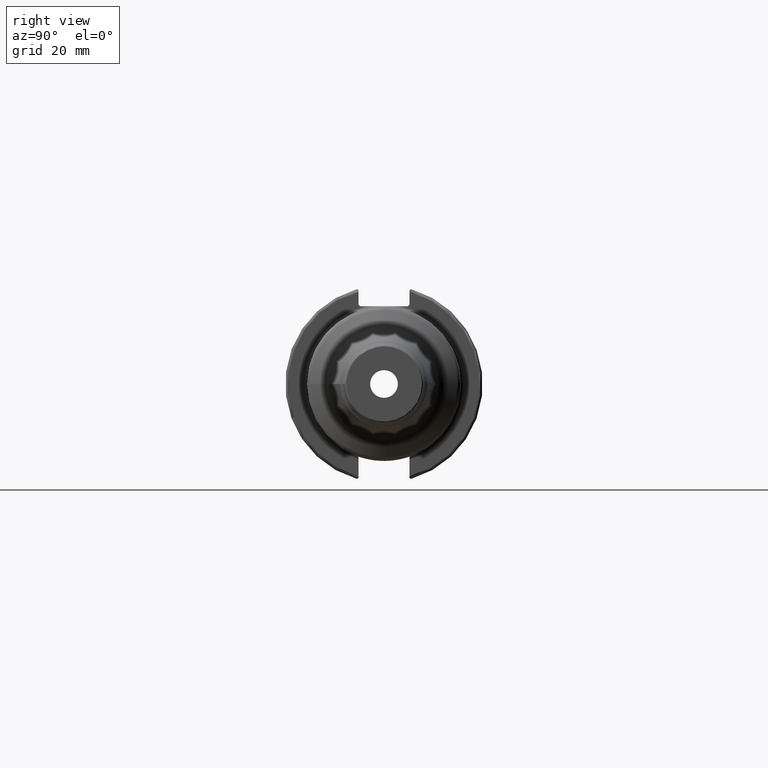
[diagram: clean part render]
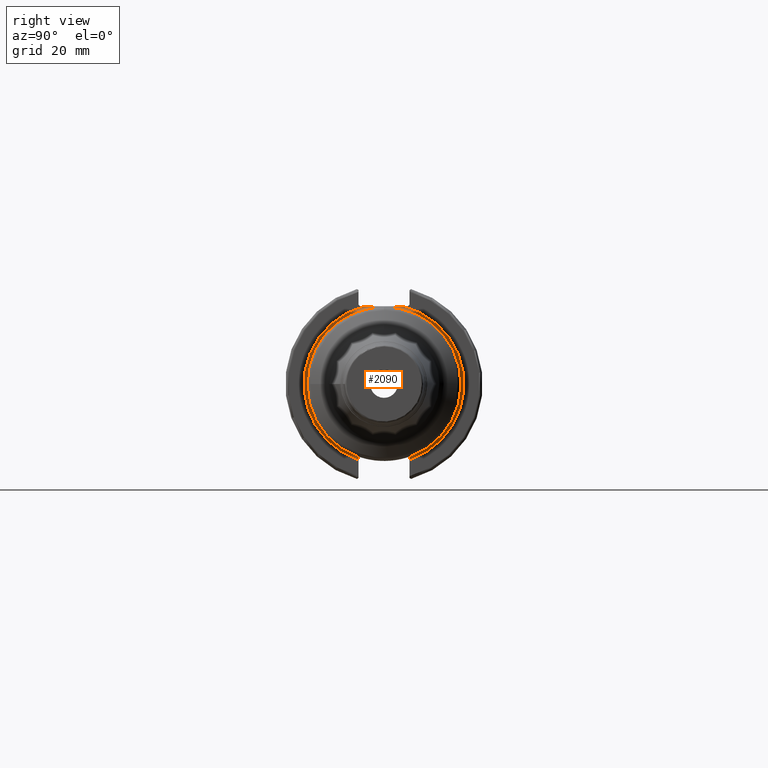
[diagram: same view with one face highlighted and labeled with its STEP entity id]
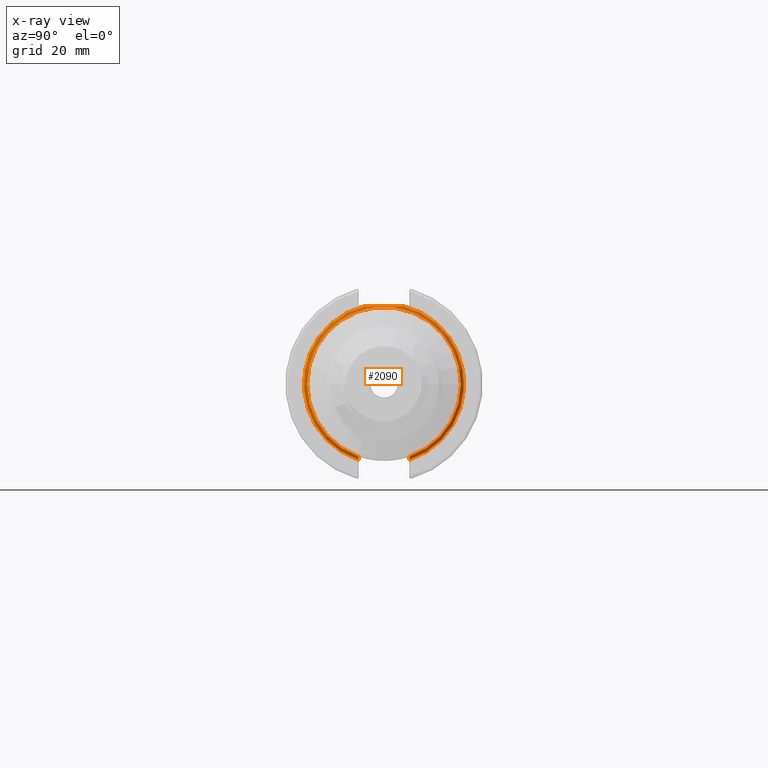
[diagram: x-ray of the same camera — body ghosted, the highlighted face saturated]
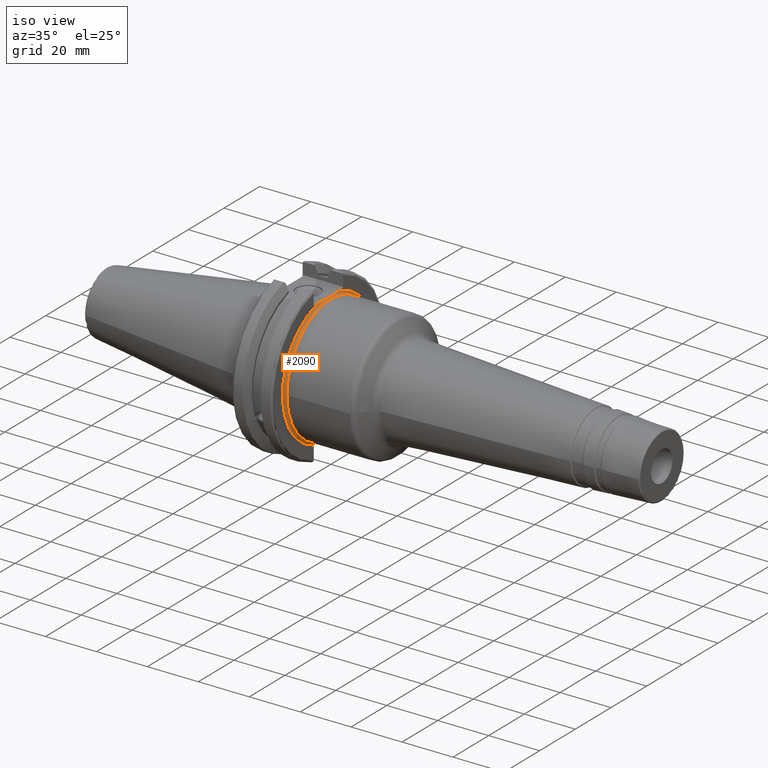
[diagram: same view with one face highlighted and labeled with its STEP entity id]
A machine part, right view. The second image highlights one B-rep face of the part: STEP entity #2090.
The next image is the same camera in x-ray: the body ghosted, the highlighted face saturated — about 3% of this face is hidden behind the body in this view.
A second angle (iso view) of the same face is appended — the face is thin or edge-on in the first view.
In plain terms, the highlighted toroidal blend (fillet) surface has major radius 25.75 mm and minor (blend) radius 1 mm.
Its self-contained STEP definition (entity closure, byte-faithful):
#96=TOROIDAL_SURFACE('',#2304,25.75,1.);
#123=B_SPLINE_CURVE_WITH_KNOTS('',3,(#3489,#3490,#3491,#3492,#3493,#3494,
#3495,#3496,#3497,#3498),.UNSPECIFIED.,.F.,.F.,(4,2,2,2,4),(1.28229186042809,
1.47392183654147,1.862003561099,2.25008528565653,2.44171526176991),
 .UNSPECIFIED.);
#124=B_SPLINE_CURVE_WITH_KNOTS('',3,(#3501,#3502,#3503,#3504,#3505,#3506,
#3507,#3508,#3509,#3510),.UNSPECIFIED.,.F.,.F.,(4,2,2,2,4),(0.152036209068872,
0.19179652975479,0.230554749961229,0.268011696377573,0.304368806480559),
 .UNSPECIFIED.);
#125=B_SPLINE_CURVE_WITH_KNOTS('',3,(#3512,#3513,#3514,#3515,#3516,#3517,
#3518,#3519,#3520,#3521),.UNSPECIFIED.,.F.,.F.,(4,2,2,2,4),(0.304368806480559,
0.340725916583545,0.378182862999889,0.416941083206328,0.456701403892246),
 .UNSPECIFIED.);
#209=FACE_OUTER_BOUND('',#318,.T.);
#318=EDGE_LOOP('',(#1565,#1566,#1567,#1568,#1569,#1570,#1571));
#617=CIRCLE('',#2204,24.75);
#618=CIRCLE('',#2205,24.75);
#695=CIRCLE('',#2305,25.75);
#696=CIRCLE('',#2306,25.75);
#791=VERTEX_POINT('',#3279);
#792=VERTEX_POINT('',#3280);
#798=VERTEX_POINT('',#3310);
#863=VERTEX_POINT('',#3487);
#864=VERTEX_POINT('',#3488);
#865=VERTEX_POINT('',#3499);
#866=VERTEX_POINT('',#3511);
#1042=EDGE_CURVE('',#791,#798,#617,.T.);
#1043=EDGE_CURVE('',#798,#792,#618,.T.);
#1130=EDGE_CURVE('',#863,#864,#123,.F.);
#1131=EDGE_CURVE('',#863,#865,#695,.T.);
#1132=EDGE_CURVE('',#791,#865,#124,.F.);
#1133=EDGE_CURVE('',#792,#866,#125,.T.);
#1134=EDGE_CURVE('',#866,#864,#696,.T.);
#1565=ORIENTED_EDGE('',*,*,#1130,.F.);
#1566=ORIENTED_EDGE('',*,*,#1131,.T.);
#1567=ORIENTED_EDGE('',*,*,#1132,.F.);
#1568=ORIENTED_EDGE('',*,*,#1042,.T.);
#1569=ORIENTED_EDGE('',*,*,#1043,.T.);
#1570=ORIENTED_EDGE('',*,*,#1133,.T.);
#1571=ORIENTED_EDGE('',*,*,#1134,.T.);
#2090=ADVANCED_FACE('',(#209),#96,.F.);
#2204=AXIS2_PLACEMENT_3D('',#3312,#2524,#2525);
#2205=AXIS2_PLACEMENT_3D('',#3313,#2526,#2527);
#2304=AXIS2_PLACEMENT_3D('',#3486,#2734,#2735);
#2305=AXIS2_PLACEMENT_3D('',#3500,#2736,#2737);
#2306=AXIS2_PLACEMENT_3D('',#3522,#2738,#2739);
#2524=DIRECTION('center_axis',(-1.,0.,0.));
#2525=DIRECTION('ref_axis',(0.,6.12323399573677E-17,1.));
#2526=DIRECTION('center_axis',(-1.,0.,0.));
#2527=DIRECTION('ref_axis',(0.,6.12323399573677E-17,1.));
#2734=DIRECTION('center_axis',(-1.,0.,0.));
#2735=DIRECTION('ref_axis',(0.,0.,1.));
#2736=DIRECTION('center_axis',(1.,0.,0.));
#2737=DIRECTION('ref_axis',(0.,6.12323399573677E-17,1.));
#2738=DIRECTION('center_axis',(1.,0.,0.));
#2739=DIRECTION('ref_axis',(0.,6.12323399573677E-17,1.));
#3279=CARTESIAN_POINT('',(20.05,-8.19,-23.3556502799644));
#3280=CARTESIAN_POINT('',(20.05,8.18999999999999,-23.3556502799644));
#3310=CARTESIAN_POINT('',(20.05,-24.75,-3.0310008278897E-15));
#3312=CARTESIAN_POINT('Origin',(20.05,0.,0.));
#3313=CARTESIAN_POINT('Origin',(20.05,0.,0.));
#3486=CARTESIAN_POINT('Origin',(20.05,0.,0.));
#3487=CARTESIAN_POINT('',(19.05,-6.16948133962654,25.));
#3488=CARTESIAN_POINT('',(19.05,6.16948133962654,25.));
#3489=CARTESIAN_POINT('Ctrl Pts',(19.05,6.16948133962654,25.));
#3490=CARTESIAN_POINT('Ctrl Pts',(19.05,5.53071475258195,25.));
#3491=CARTESIAN_POINT('Ctrl Pts',(19.0917093675371,4.76533047486056,25.));
#3492=CARTESIAN_POINT('Ctrl Pts',(19.2334466867335,2.83816328553263,25.));
#3493=CARTESIAN_POINT('Ctrl Pts',(19.3885621722339,1.29360574852511,25.));
#3494=CARTESIAN_POINT('Ctrl Pts',(19.3885621722339,-1.29360574852511,25.));
#3495=CARTESIAN_POINT('Ctrl Pts',(19.2334466867335,-2.83816328553263,25.));
#3496=CARTESIAN_POINT('Ctrl Pts',(19.0917093675371,-4.76533047486056,25.));
#3497=CARTESIAN_POINT('Ctrl Pts',(19.05,-5.53071475258195,25.));
#3498=CARTESIAN_POINT('Ctrl Pts',(19.05,-6.16948133962654,25.));
#3499=CARTESIAN_POINT('',(19.05,-8.19,-24.4128326910254));
#3500=CARTESIAN_POINT('Origin',(19.05,0.,0.));
#3501=CARTESIAN_POINT('Ctrl Pts',(19.05,-8.19,-24.4128326910254));
#3502=CARTESIAN_POINT('Ctrl Pts',(19.05,-8.19,-24.280298288739));
#3503=CARTESIAN_POINT('Ctrl Pts',(19.079885359023,-8.19,-24.124090110551));
#3504=CARTESIAN_POINT('Ctrl Pts',(19.177275426903,-8.19,-23.8811560320461));
#3505=CARTESIAN_POINT('Ctrl Pts',(19.2609009617474,-8.19,-23.7506111583087));
#3506=CARTESIAN_POINT('Ctrl Pts',(19.4373931081247,-8.19,-23.5678758115065));
#3507=CARTESIAN_POINT('Ctrl Pts',(19.5602603745075,-8.19,-23.4821320058467));
#3508=CARTESIAN_POINT('Ctrl Pts',(19.7864204604307,-8.19,-23.3852265342659));
#3509=CARTESIAN_POINT('Ctrl Pts',(19.92880963299,-8.19,-23.3556502799644));
#3510=CARTESIAN_POINT('Ctrl Pts',(20.05,-8.19,-23.3556502799644));
#3511=CARTESIAN_POINT('',(19.05,8.19,-24.4128326910254));
#3512=CARTESIAN_POINT('Ctrl Pts',(20.05,8.19,-23.3556502799644));
#3513=CARTESIAN_POINT('Ctrl Pts',(19.92880963299,8.19,-23.3556502799644));
#3514=CARTESIAN_POINT('Ctrl Pts',(19.7864204604307,8.19,-23.3852265342659));
#3515=CARTESIAN_POINT('Ctrl Pts',(19.5602603745075,8.19,-23.4821320058467));
#3516=CARTESIAN_POINT('Ctrl Pts',(19.4373931081247,8.19,-23.5678758115065));
#3517=CARTESIAN_POINT('Ctrl Pts',(19.2609009617474,8.19,-23.7506111583087));
#3518=CARTESIAN_POINT('Ctrl Pts',(19.177275426903,8.19,-23.8811560320461));
#3519=CARTESIAN_POINT('Ctrl Pts',(19.079885359023,8.19,-24.124090110551));
#3520=CARTESIAN_POINT('Ctrl Pts',(19.05,8.19,-24.280298288739));
#3521=CARTESIAN_POINT('Ctrl Pts',(19.05,8.19,-24.4128326910254));
#3522=CARTESIAN_POINT('Origin',(19.05,0.,0.));